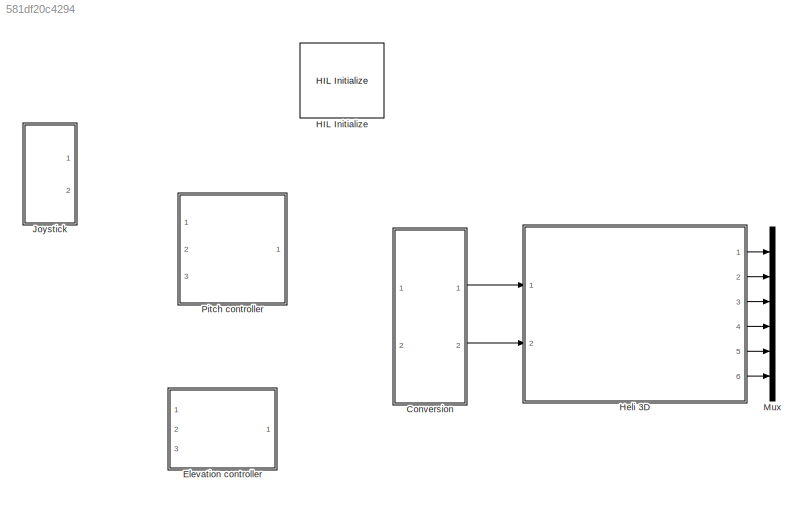
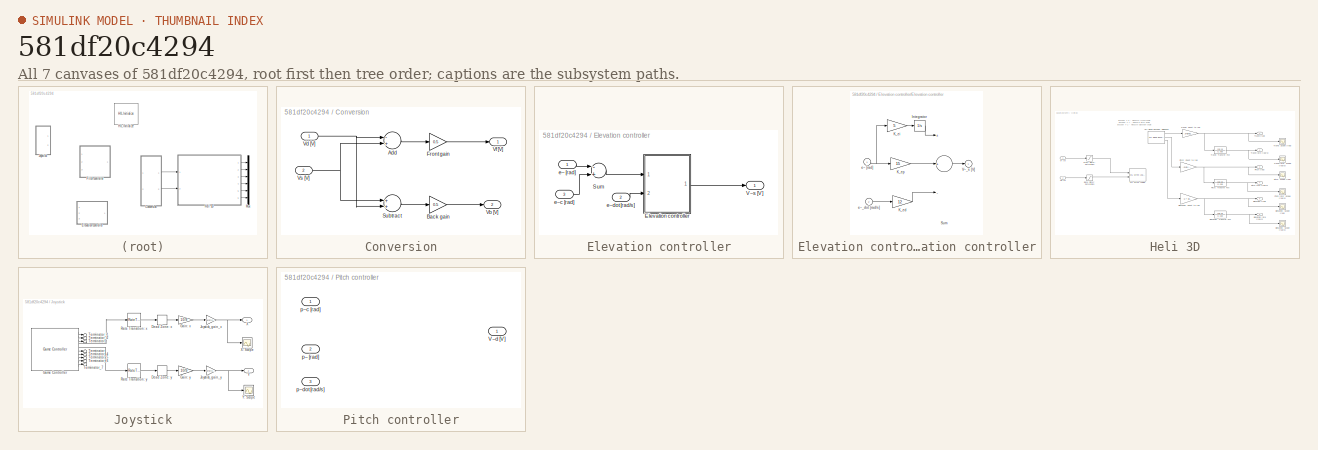
[diagram: thumbnail index - all 7 canvases of the model, root first then tree order]
MODEL slx_581df20c4294
KIND model
CONFIG AbsTol = auto
CONFIG FixedStep = 0.002
CONFIG MaxStep = auto
CONFIG MinStep = auto
CONFIG PostLoadFcn = qc_set_target_type(getConfigSet(bdroot, 'QUARC Default Target Configuration'));
CONFIG RelTol = 1e-3
CONFIG SampleTimeConstraint = Unconstrained
CONFIG Solver = ode1
CONFIG SolverMode = Auto
CONFIG SolverName = ode1
CONFIG StartTime = 0.0
CONFIG StopTime = inf
BLOCK [SubSystem] Conversion
  Ports = [2, 2]
  RequestExecContextInheritance = off
  Variant = off
BLOCK [Sum] Conversion/Add
  InputSameDT = off
  Inputs = -+
  OutDataTypeStr = Inherit: Inherit via internal rule
  Ports = [2, 1]
  SaturateOnIntegerOverflow = off
BLOCK [Gain] Conversion/Back gain
  Gain = 0.5
  OutDataTypeStr = Inherit: Inherit via internal rule
  ParamDataTypeStr = Inherit: Inherit via internal rule
  SaturateOnIntegerOverflow = off
BLOCK [Gain] Conversion/Front gain
  Gain = 0.5
  OutDataTypeStr = Inherit: Inherit via internal rule
  ParamDataTypeStr = Inherit: Inherit via internal rule
  SaturateOnIntegerOverflow = off
BLOCK [Sum] Conversion/Subtract
  InputSameDT = off
  OutDataTypeStr = Inherit: Inherit via internal rule
  Ports = [2, 1]
  SaturateOnIntegerOverflow = off
BLOCK [Outport] Conversion/Vb [V]
  IconDisplay = Port number
  Port = 2
BLOCK [Inport] Conversion/Vd [V]
  IconDisplay = Port number
BLOCK [Outport] Conversion/Vf [V]
  IconDisplay = Port number
BLOCK [Inport] Conversion/Vs [V]
  IconDisplay = Port number
  Port = 2
BLOCK [SubSystem] Elevation controller
  Ports = [3, 1]
  RequestExecContextInheritance = off
  Variant = off
BLOCK [SubSystem] Elevation controller/Elevation controller
  Ports = [2, 1]
  RequestExecContextInheritance = off
  Variant = off
BLOCK [Integrator] Elevation controller/Elevation controller/Integrator
  LimitOutput = on
  Ports = [1, 1]
BLOCK [Gain] Elevation controller/Elevation controller/K_ed
  Gain = 12
BLOCK [Gain] Elevation controller/Elevation controller/K_ei
  Gain = 5
BLOCK [Gain] Elevation controller/Elevation controller/K_ep
  Gain = 15
BLOCK [Sum] Elevation controller/Elevation controller/Sum
  Inputs = ++-
  Ports = [3, 1]
BLOCK [Outport] Elevation controller/Elevation controller/V~_s [V]
  IconDisplay = Port number
  InitialOutput = 0
BLOCK [Inport] Elevation controller/Elevation controller/e~ [rad]
  IconDisplay = Port number
BLOCK [Inport] Elevation controller/Elevation controller/e~_dot [rad//s]
  IconDisplay = Port number
  Port = 2
BLOCK [Sum] Elevation controller/Sum
  Inputs = -+
  Ports = [2, 1]
BLOCK [Outport] Elevation controller/V~s [V]
  IconDisplay = Port number
  InitialOutput = 0
BLOCK [Inport] Elevation controller/e~ [rad]
  IconDisplay = Port number
BLOCK [Inport] Elevation controller/e~c [rad]
  IconDisplay = Port number
  Port = 3
BLOCK [Inport] Elevation controller/e~dot [rad//s]
  IconDisplay = Port number
  Port = 2
BLOCK [Reference] HIL Initialize  REF=quarc_library/Data Acquisition/Generic/Configuration/HIL Initialize
  AttributesFormatString = %<object_name> (%<board_type>-%<board_number>)
  Ports = []
  Priority = -99
  SourceBlock = quarc_library/Data Acquisition/Generic/Configuration/HIL Initialize
  SourceType = HIL Initialize
  UserDataPersistent = on
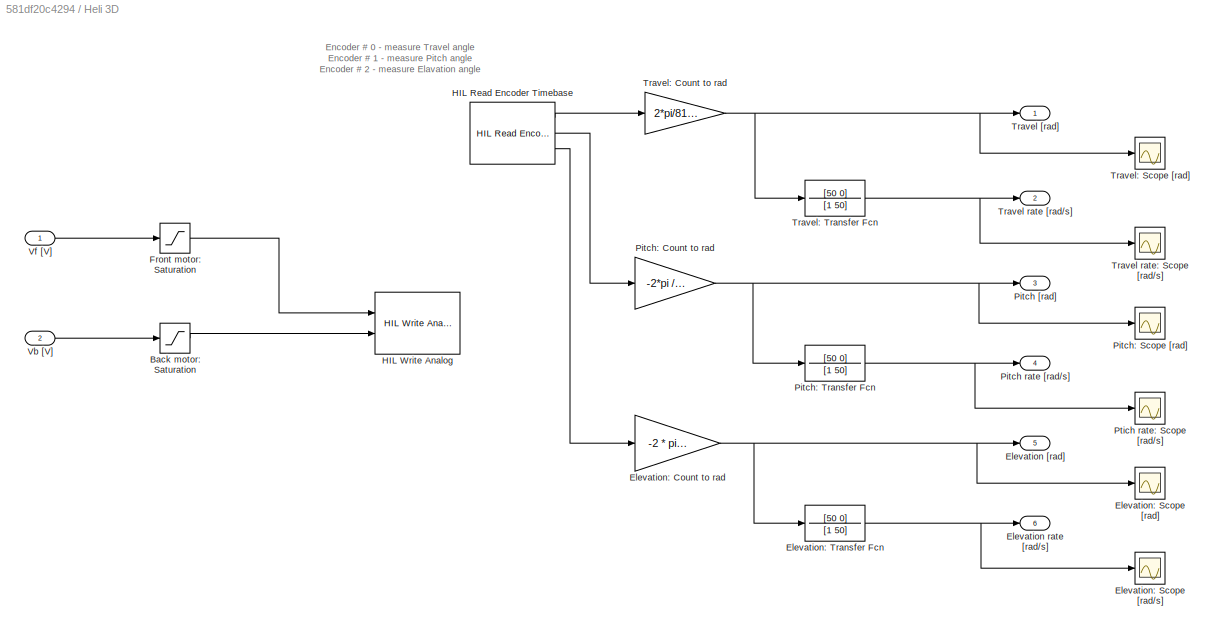
BLOCK [SubSystem] Heli 3D
  Ports = [2, 6]
  RequestExecContextInheritance = off
  Variant = off
BLOCK [Saturate] Heli 3D/Back motor: Saturation
  InputPortMap = u0
  LowerLimit = -5
  Ports = [1, 1]
  UpperLimit = 5
BLOCK [Outport] Heli 3D/Elevation [rad]
  IconDisplay = Port number
  Port = 5
BLOCK [Outport] Heli 3D/Elevation rate [rad//s]
  IconDisplay = Port number
  Port = 6
BLOCK [Gain] Heli 3D/Elevation: Count to rad
  Gain = -2 * pi /4096
  OutDataTypeStr = Inherit: Inherit via internal rule
  ParamDataTypeStr = Inherit: Inherit via internal rule
  SaturateOnIntegerOverflow = off
BLOCK [Scope] Heli 3D/Elevation: Scope [rad//s]
  Ports = [1]
  ScopeSpecificationString = C++SS(StrPVP('Location','[1236, 673, 1560, 912]'),StrPVP('Open','off'),MxPVP('AxesTitles',24,'struct(''axes1'',''%<SignalLabel>'')'),MxPVP('ScopeGraphics',28,'struct(''FigureColor'',''[0.5 0.5 0.5]'',''AxesColor'',''[0 0 0]'',''AxesTickColor'',''[1 1 1]'',''LineColors'',''[1 1 0;1 0 1;0 1 1;1 0 0;0 1 0;0 0 1]'',''LineStyles'',''-|-|-|-|-|-'',''LineWidths'',''[0.5 0.5 0.5 0.5 0.5 0.5]'',''MarkerSty...<+342ch>
BLOCK [Scope] Heli 3D/Elevation: Scope [rad]
  Ports = [1]
  ScopeSpecificationString = Simulink.scopes.TimeScopeBlockCfg('CurrentConfiguration', extmgr.ConfigurationSet(extmgr.Configuration('Core','General UI',true),extmgr.Configuration('Core','Source UI',true),extmgr.Configuration('Sources','WiredSimulink',true,'DataLoggingVariableName','ScopeData12','DataLoggingSaveFormat','StructureWithTime','DataLoggingLimitDataPoints',true,'DataLoggingDecimation','1','DataLoggingDecimateData',t...<+1679ch>
BLOCK [TransferFcn] Heli 3D/Elevation: Transfer Fcn
  Denominator = [1 50]
  Numerator = [50 0]
BLOCK [Saturate] Heli 3D/Front motor: Saturation
  InputPortMap = u0
  LowerLimit = -5
  Ports = [1, 1]
  UpperLimit = 5
BLOCK [Reference] Heli 3D/HIL Read Encoder Timebase  REF=quarc_library/Data Acquisition/Generic/Timebases/HIL Read Encoder
Timebase
  AttributesFormatString = (%<object_name>)
  Ports = [0, 3]
  SourceBlock = quarc_library/Data Acquisition/Generic/Timebases/HIL Read Encoder\nTimebase
  SourceType = HIL Read Encoder Timebase
  UserDataPersistent = on
BLOCK [Reference] Heli 3D/HIL Write Analog  REF=quarc_library/Data Acquisition/Generic/Immediate I//O/HIL Write Analog
  AttributesFormatString = (%<object_name>)
  Ports = [2]
  SourceBlock = quarc_library/Data Acquisition/Generic/Immediate I//O/HIL Write Analog
  SourceType = HIL Write Analog
  UserDataPersistent = on
BLOCK [Outport] Heli 3D/Pitch [rad]
  IconDisplay = Port number
  Port = 3
BLOCK [Outport] Heli 3D/Pitch rate [rad//s]
  IconDisplay = Port number
  Port = 4
BLOCK [Gain] Heli 3D/Pitch: Count to rad
  Gain = -2*pi /4096
  OutDataTypeStr = Inherit: Inherit via internal rule
  ParamDataTypeStr = Inherit: Inherit via internal rule
  SaturateOnIntegerOverflow = off
BLOCK [Scope] Heli 3D/Pitch: Scope [rad]
  Ports = [1]
  ScopeSpecificationString = Simulink.scopes.TimeScopeBlockCfg('CurrentConfiguration', extmgr.ConfigurationSet(extmgr.Configuration('Core','General UI',true),extmgr.Configuration('Core','Source UI',true),extmgr.Configuration('Sources','WiredSimulink',true,'DataLoggingVariableName','ScopeData10','DataLoggingSaveFormat','StructureWithTime','DataLoggingLimitDataPoints',true,'DataLoggingDecimation','1','DataLoggingDecimateData',t...<+1679ch>
BLOCK [TransferFcn] Heli 3D/Pitch: Transfer Fcn
  Denominator = [1 50]
  Numerator = [50 0]
BLOCK [Scope] Heli 3D/Ptich rate: Scope [rad//s]
  Ports = [1]
  ScopeSpecificationString = C++SS(StrPVP('Location','[1236, 673, 1560, 912]'),StrPVP('Open','off'),MxPVP('AxesTitles',24,'struct(''axes1'',''%<SignalLabel>'')'),MxPVP('ScopeGraphics',28,'struct(''FigureColor'',''[0.5 0.5 0.5]'',''AxesColor'',''[0 0 0]'',''AxesTickColor'',''[1 1 1]'',''LineColors'',''[1 1 0;1 0 1;0 1 1;1 0 0;0 1 0;0 0 1]'',''LineStyles'',''-|-|-|-|-|-'',''LineWidths'',''[0.5 0.5 0.5 0.5 0.5 0.5]'',''MarkerSty...<+342ch>
BLOCK [Outport] Heli 3D/Travel [rad]
  IconDisplay = Port number
BLOCK [Outport] Heli 3D/Travel rate [rad//s]
  IconDisplay = Port number
  Port = 2
BLOCK [Scope] Heli 3D/Travel rate: Scope [rad//s]
  Ports = [1]
  ScopeSpecificationString = Simulink.scopes.TimeScopeBlockCfg('CurrentConfiguration', extmgr.ConfigurationSet(extmgr.Configuration('Core','General UI',true),extmgr.Configuration('Core','Source UI',true),extmgr.Configuration('Sources','WiredSimulink',true,'DataLoggingVariableName','ScopeData9','DataLoggingSaveFormat','StructureWithTime','DataLoggingLimitDataPoints',true,'DataLoggingDecimation','1','DataLoggingDecimateData',tr...<+1678ch>
BLOCK [Gain] Heli 3D/Travel: Count to rad
  Gain = 2*pi/8192
  OutDataTypeStr = Inherit: Inherit via internal rule
  ParamDataTypeStr = Inherit: Inherit via internal rule
  SaturateOnIntegerOverflow = off
BLOCK [Scope] Heli 3D/Travel: Scope [rad]
  Ports = [1]
  ScopeSpecificationString = Simulink.scopes.TimeScopeBlockCfg('CurrentConfiguration', extmgr.ConfigurationSet(extmgr.Configuration('Core','General UI',true),extmgr.Configuration('Core','Source UI',true),extmgr.Configuration('Sources','WiredSimulink',true,'DataLoggingVariableName','ScopeData8','DataLoggingSaveFormat','StructureWithTime','DataLoggingLimitDataPoints',true,'DataLoggingDecimation','1','DataLoggingDecimateData',tr...<+1678ch>
BLOCK [TransferFcn] Heli 3D/Travel: Transfer Fcn
  Denominator = [1 50]
  Numerator = [50 0]
BLOCK [Inport] Heli 3D/Vb [V]
  IconDisplay = Port number
  Port = 2
BLOCK [Inport] Heli 3D/Vf [V]
  IconDisplay = Port number
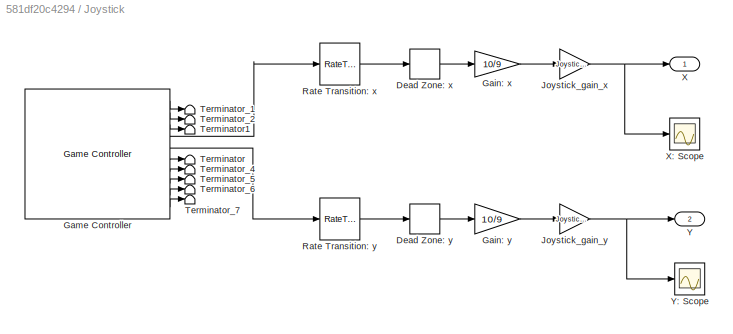
BLOCK [SubSystem] Joystick
  Ports = [0, 2]
  RequestExecContextInheritance = off
  Variant = off
BLOCK [DeadZone] Joystick/Dead Zone: x
  LowerValue = -0.1
  UpperValue = 0.1
BLOCK [DeadZone] Joystick/Dead Zone: y
  LowerValue = -0.1
  UpperValue = 0.1
BLOCK [Gain] Joystick/Gain: x
  Gain = 10/9
  OutDataTypeStr = Inherit: Inherit via internal rule
  ParamDataTypeStr = Inherit: Inherit via internal rule
  SaturateOnIntegerOverflow = off
BLOCK [Gain] Joystick/Gain: y
  Gain = 10/9
  OutDataTypeStr = Inherit: Inherit via internal rule
  ParamDataTypeStr = Inherit: Inherit via internal rule
  SaturateOnIntegerOverflow = off
BLOCK [Reference] Joystick/Game Controller  REF=quarc_library/Devices/Peripherals/Target/Game Controller
  Ports = [0, 10]
  SourceBlock = quarc_library/Devices/Peripherals/Target/Game Controller
  SourceType = Game Controller
BLOCK [Gain] Joystick/Joystick_gain_x
  Gain = Joystick_gain_x
  OutDataTypeStr = Inherit: Inherit via internal rule
  ParamDataTypeStr = Inherit: Inherit via internal rule
  SaturateOnIntegerOverflow = off
BLOCK [Gain] Joystick/Joystick_gain_y
  Gain = Joystick_gain_y
  OutDataTypeStr = Inherit: Inherit via internal rule
  ParamDataTypeStr = Inherit: Inherit via internal rule
  SaturateOnIntegerOverflow = off
BLOCK [RateTransition] Joystick/Rate Transition: x
BLOCK [RateTransition] Joystick/Rate Transition: y
BLOCK [Terminator] Joystick/Terminator
BLOCK [Terminator] Joystick/Terminator1
BLOCK [Terminator] Joystick/Terminator_1
BLOCK [Terminator] Joystick/Terminator_2
BLOCK [Terminator] Joystick/Terminator_4
BLOCK [Terminator] Joystick/Terminator_5
BLOCK [Terminator] Joystick/Terminator_6
BLOCK [Terminator] Joystick/Terminator_7
BLOCK [Outport] Joystick/X
  IconDisplay = Port number
BLOCK [Scope] Joystick/X: Scope
  Ports = [1]
  ScopeSpecificationString = C++SS(StrPVP('Location','[894, 60, 1218, 301]'),StrPVP('Open','off'),StrPVP('ZoomMode','yonly'),MxPVP('AxesTitles',24,'struct(''axes1'',''%<SignalLabel>'')'),MxPVP('ScopeGraphics',28,'struct(''FigureColor'',''[0.5 0.5 0.5]'',''AxesColor'',''[0 0 0]'',''AxesTickColor'',''[1 1 1]'',''LineColors'',''[1 1 0;1 0 1;0 1 1;1 0 0;0 1 0;0 0 1]'',''LineStyles'',''-|-|-|-|-|-'',''LineWidths'',''[0.5 0.5 0.5 0...<+364ch>
BLOCK [Outport] Joystick/Y
  IconDisplay = Port number
  Port = 2
BLOCK [Scope] Joystick/Y: Scope
  Ports = [1]
  ScopeSpecificationString = C++SS(StrPVP('Location','[894, 368, 1218, 604]'),StrPVP('Open','off'),MxPVP('AxesTitles',24,'struct(''axes1'',''%<SignalLabel>'')'),MxPVP('ScopeGraphics',28,'struct(''FigureColor'',''[0.5 0.5 0.5]'',''AxesColor'',''[0 0 0]'',''AxesTickColor'',''[1 1 1]'',''LineColors'',''[1 1 0;1 0 1;0 1 1;1 0 0;0 1 0;0 0 1]'',''LineStyles'',''-|-|-|-|-|-'',''LineWidths'',''[0.5 0.5 0.5 0.5 0.5 0.5]'',''MarkerStyl...<+340ch>
BLOCK [Mux] Mux
  DisplayOption = bar
  Inputs = 6
  Ports = [6, 1]
BLOCK [SubSystem] Pitch controller
  Ports = [3, 1]
  RequestExecContextInheritance = off
  Variant = off
BLOCK [Outport] Pitch controller/V~d [V]
  IconDisplay = Port number
  InitialOutput = 0
BLOCK [Inport] Pitch controller/p~ [rad]
  IconDisplay = Port number
  Port = 2
BLOCK [Inport] Pitch controller/p~c [rad]
  IconDisplay = Port number
BLOCK [Inport] Pitch controller/p~dot [rad//s]
  IconDisplay = Port number
  Port = 3
ANNOTATION Heli 3D: Encoder # 0 - measure Travel angle Encoder # 1 - measure Pitch angle Encoder # 2 - measure Elavation angle
LINE Conversion/Add:1 -> Conversion/Front gain:1
LINE Conversion/Back gain:1 -> Conversion/Vb [V]:1
LINE Conversion/Front gain:1 -> Conversion/Vf [V]:1
LINE Conversion/Subtract:1 -> Conversion/Back gain:1
NET Conversion/Vd [V]:1 -> Conversion/Add:1, Conversion/Subtract:2
NET Conversion/Vs [V]:1 -> Conversion/Add:2, Conversion/Subtract:1
LINE Conversion:1 -> Heli 3D:1
LINE Conversion:2 -> Heli 3D:2
LINE Elevation controller/Elevation controller/Integrator:1 -> Elevation controller/Elevation controller/Sum:1
LINE Elevation controller/Elevation controller/K_ed:1 -> Elevation controller/Elevation controller/Sum:3
LINE Elevation controller/Elevation controller/K_ei:1 -> Elevation controller/Elevation controller/Integrator:1
LINE Elevation controller/Elevation controller/K_ep:1 -> Elevation controller/Elevation controller/Sum:2
LINE Elevation controller/Elevation controller/Sum:1 -> Elevation controller/Elevation controller/V~_s [V]:1
NET Elevation controller/Elevation controller/e~ [rad]:1 -> Elevation controller/Elevation controller/K_ei:1, Elevation controller/Elevation controller/K_ep:1
LINE Elevation controller/Elevation controller/e~_dot [rad//s]:1 -> Elevation controller/Elevation controller/K_ed:1
LINE Elevation controller/Elevation controller:1 -> Elevation controller/V~s [V]:1
LINE Elevation controller/Sum:1 -> Elevation controller/Elevation controller:1
LINE Elevation controller/e~ [rad]:1 -> Elevation controller/Sum:1
LINE Elevation controller/e~c [rad]:1 -> Elevation controller/Sum:2
LINE Elevation controller/e~dot [rad//s]:1 -> Elevation controller/Elevation controller:2
LINE Heli 3D/Back motor: Saturation:1 -> Heli 3D/HIL Write Analog:2
NET Heli 3D/Elevation: Count to rad:1 -> Heli 3D/Elevation [rad]:1, Heli 3D/Elevation: Scope [rad]:1, Heli 3D/Elevation: Transfer Fcn:1
NET Heli 3D/Elevation: Transfer Fcn:1 -> Heli 3D/Elevation rate [rad//s]:1, Heli 3D/Elevation: Scope [rad//s]:1
LINE Heli 3D/Front motor: Saturation:1 -> Heli 3D/HIL Write Analog:1
LINE Heli 3D/HIL Read Encoder Timebase:1 -> Heli 3D/Travel: Count to rad:1
LINE Heli 3D/HIL Read Encoder Timebase:2 -> Heli 3D/Pitch: Count to rad:1
LINE Heli 3D/HIL Read Encoder Timebase:3 -> Heli 3D/Elevation: Count to rad:1
NET Heli 3D/Pitch: Count to rad:1 -> Heli 3D/Pitch [rad]:1, Heli 3D/Pitch: Scope [rad]:1, Heli 3D/Pitch: Transfer Fcn:1
NET Heli 3D/Pitch: Transfer Fcn:1 -> Heli 3D/Pitch rate [rad//s]:1, Heli 3D/Ptich rate: Scope [rad//s]:1
NET Heli 3D/Travel: Count to rad:1 -> Heli 3D/Travel [rad]:1, Heli 3D/Travel: Scope [rad]:1, Heli 3D/Travel: Transfer Fcn:1
NET Heli 3D/Travel: Transfer Fcn:1 -> Heli 3D/Travel rate [rad//s]:1, Heli 3D/Travel rate: Scope [rad//s]:1
LINE Heli 3D/Vb [V]:1 -> Heli 3D/Back motor: Saturation:1
LINE Heli 3D/Vf [V]:1 -> Heli 3D/Front motor: Saturation:1
LINE Heli 3D:1 -> Mux:1
LINE Heli 3D:2 -> Mux:2
LINE Heli 3D:3 -> Mux:3
LINE Heli 3D:4 -> Mux:4
LINE Heli 3D:5 -> Mux:5
LINE Heli 3D:6 -> Mux:6
LINE Joystick/Dead Zone: x:1 -> Joystick/Gain: x:1
LINE Joystick/Dead Zone: y:1 -> Joystick/Gain: y:1
LINE Joystick/Gain: x:1 -> Joystick/Joystick_gain_x:1
LINE Joystick/Gain: y:1 -> Joystick/Joystick_gain_y:1
LINE Joystick/Game Controller:1 -> Joystick/Terminator_1:1
LINE Joystick/Game Controller:10 -> Joystick/Terminator_7:1
LINE Joystick/Game Controller:2 -> Joystick/Terminator_2:1
LINE Joystick/Game Controller:3 -> Joystick/Terminator1:1
LINE Joystick/Game Controller:4 -> Joystick/Rate Transition: x:1
LINE Joystick/Game Controller:5 -> Joystick/Rate Transition: y:1
LINE Joystick/Game Controller:6 -> Joystick/Terminator:1
LINE Joystick/Game Controller:7 -> Joystick/Terminator_4:1
LINE Joystick/Game Controller:8 -> Joystick/Terminator_5:1
LINE Joystick/Game Controller:9 -> Joystick/Terminator_6:1
NET Joystick/Joystick_gain_x:1 -> Joystick/X: Scope:1, Joystick/X:1
NET Joystick/Joystick_gain_y:1 -> Joystick/Y: Scope:1, Joystick/Y:1
LINE Joystick/Rate Transition: x:1 -> Joystick/Dead Zone: x:1
LINE Joystick/Rate Transition: y:1 -> Joystick/Dead Zone: y:1
note: NET lines group one-source signal fan-out (src -> all destinations, sorted); 1:1 wires keep LINE
